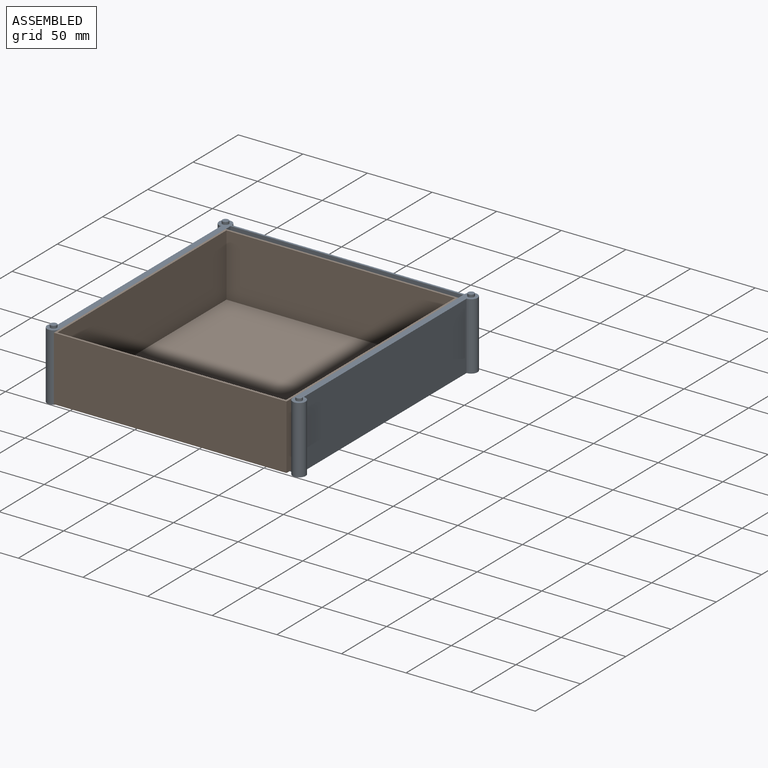
[diagram: assembled view]
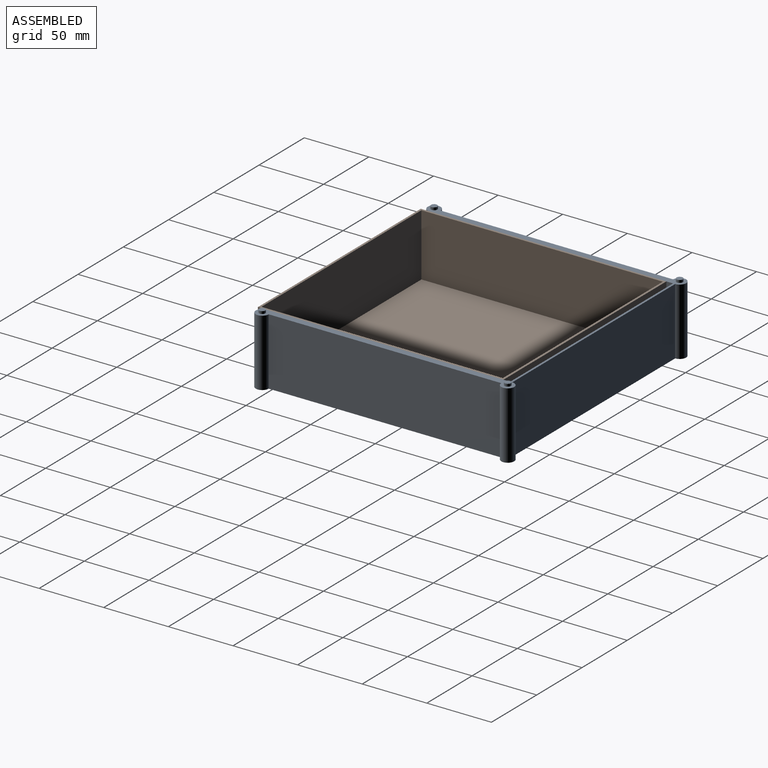
[diagram: assembled view, second angle]
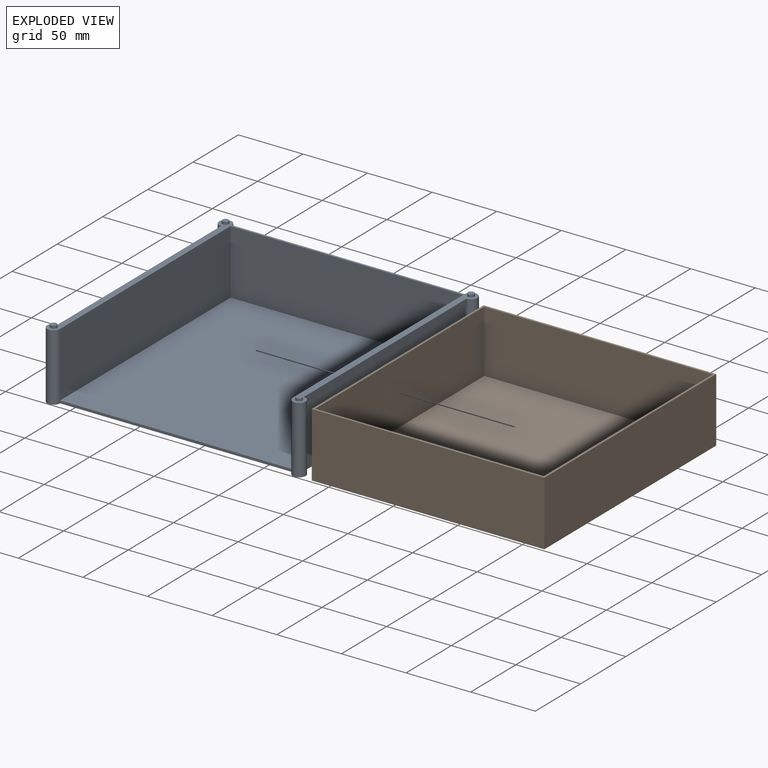
[diagram: exploded view]
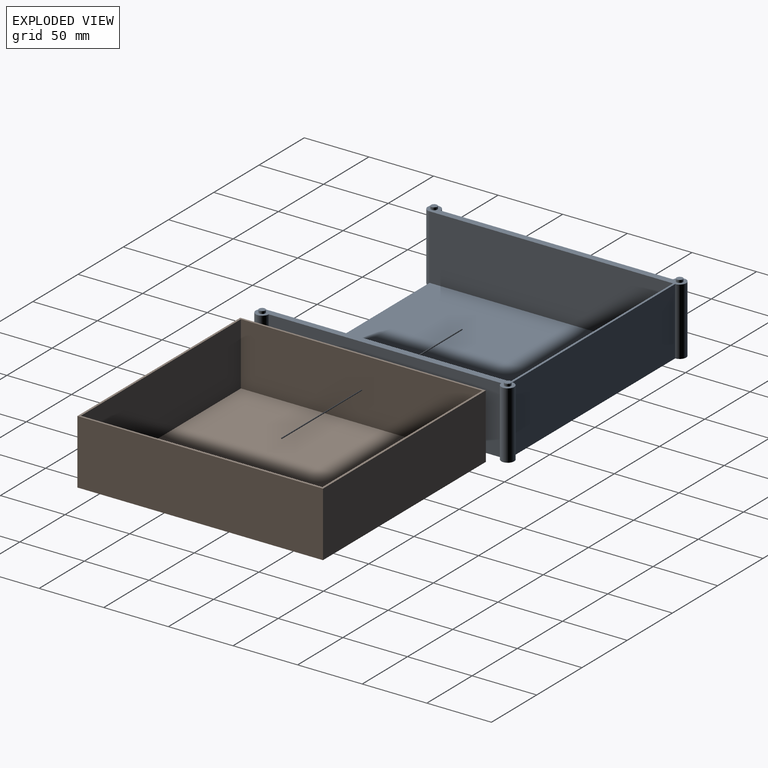
[diagram: exploded view, second angle]
ASSEMBLY  parts=2 mates=2
PART A: 30 faces, bbox 200x200x54 mm
  f0: cylinder r=5mm len=52mm, axis (0,0,1), area 1225.2mm2, adj f3,f4,f8,f14
  f1: cylinder r=5mm len=52mm, axis (0,0,1), area 1225.2mm2, adj f4,f5,f8,f14,f27
  f2: cylinder r=5mm len=52mm, axis (0,0,1), area 1225.2mm2, adj f3,f7,f8,f14
  f3: plane 180x52mm, normal (0,1,0), area 9360mm2, adj f0,f2,f8,f14
  f4: plane 180x52mm, normal (-1,0,0), area 9360mm2, adj f0,f1,f8,f14
  f5: plane 180x2mm, normal (0,-1,0), area 360mm2, adj f1,f6,f8,f9
  f6: cylinder r=5mm len=52mm, axis (0,0,1), area 1225.2mm2, adj f5,f7,f8,f14,f29
  f7: plane 180x52mm, normal (1,0,0), area 9360mm2, adj f2,f6,f8,f14
  f8: plane 200x200mm, normal (0,0,-1), area 36257.1mm2, adj f0,f1,f2,f3,f4,f5,f6,f7
  f9: plane 188.4x180mm, normal (0,0,1), area 33912mm2, adj f5,f27,f28,f29
  f10: cylinder r=2.5mm len=5mm, axis (0,0,-1), area 31.4mm2, adj f8,f18
  f11: cylinder r=2.5mm len=5mm, axis (0,0,-1), area 31.4mm2, adj f8,f17
  f12: cylinder r=2.5mm len=5mm, axis (0,0,-1), area 31.4mm2, adj f8,f16
  f13: cylinder r=2.5mm len=5mm, axis (0,0,-1), area 31.4mm2, adj f8,f15
  f14: plane 200x200mm, normal (0,0,1), area 2348.2mm2, adj f0,f1,f2,f3,f4,f6,f7,f19
  f15: plane 5x5mm, normal (0,0,-1), area 19.6mm2, adj f13
  f16: plane 5x5mm, normal (0,0,-1), area 19.6mm2, adj f12
  f17: plane 5x5mm, normal (0,0,-1), area 19.6mm2, adj f11
  f18: plane 5x5mm, normal (0,0,-1), area 19.6mm2, adj f10
  f19: cylinder r=2.45mm len=4.9mm, axis (0,0,-1), area 30.8mm2, adj f14,f20
  f20: plane 4.9x4.9mm, normal (0,0,1), area 18.9mm2, adj f19
  f21: cylinder r=2.45mm len=4.9mm, axis (0,0,-1), area 30.8mm2, adj f14,f22
  f22: plane 4.9x4.9mm, normal (0,0,1), area 18.9mm2, adj f21
  f23: cylinder r=2.45mm len=4.9mm, axis (0,0,-1), area 30.8mm2, adj f14,f24
  f24: plane 4.9x4.9mm, normal (0,0,1), area 18.9mm2, adj f23
  f25: cylinder r=2.45mm len=4.9mm, axis (0,0,-1), area 30.8mm2, adj f14,f26
  f26: plane 4.9x4.9mm, normal (0,0,1), area 18.9mm2, adj f25
  f27: plane 188.4x50mm, normal (1,0,0), area 9420mm2, adj f1,f9,f14,f28
  f28: plane 180x50mm, normal (0,-1,0), area 9000mm2, adj f9,f14,f27,f29
  f29: plane 188.4x50mm, normal (-1,0,0), area 9420mm2, adj f6,f9,f14,f28
PART B: 11 faces, bbox 180x190x50 mm
  f0: plane 190x50mm, normal (-1,0,0), area 9500mm2, adj f1,f3,f4,f9
  f1: plane 180x50mm, normal (0,-1,0), area 9000mm2, adj f0,f2,f4,f9
  f2: plane 190x50mm, normal (1,0,0), area 9500mm2, adj f1,f3,f4,f9
  f3: plane 180x50mm, normal (0,1,0), area 9000mm2, adj f0,f2,f4,f9
  f4: plane 190x180mm, normal (0,0,-1), area 34200mm2, adj f0,f1,f2,f3
  f5: plane 186.8x48.4mm, normal (1,0,0), area 9041.1mm2, adj f6,f8,f9,f10
  f6: plane 176.8x48.4mm, normal (0,-1,0), area 8557.1mm2, adj f5,f7,f9,f10
  f7: plane 186.8x48.4mm, normal (-1,0,0), area 9041.1mm2, adj f6,f8,f9,f10
  f8: plane 176.8x48.4mm, normal (0,1,0), area 8557.1mm2, adj f5,f7,f9,f10
  f9: plane 190x180mm, normal (0,0,1), area 1173.8mm2, adj f0,f1,f2,f3,f5,f6,f7,f8
  f10: plane 186.8x176.8mm, normal (0,0,1), area 33026.2mm2, adj f5,f6,f7,f8
PLACE A t=(-161.18,37.73,-58.83)mm
PLACE B t=(-156.18,-159.07,-58.83)mm
MATE planar B.f0 <-> A.f27  axis (-1,0,0) through (-156.18,-64.07,-33.83)mm
MATE planar A.f9 <-> B.f4  axis (0,0,1) through (-66.18,-58.07,-58.83)mm
